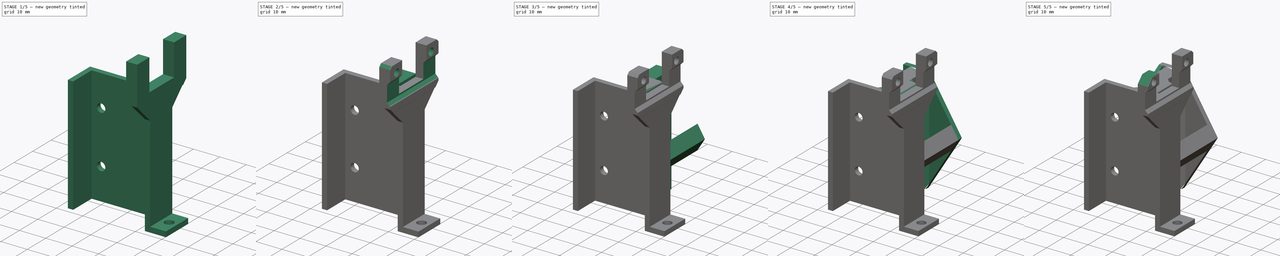
[diagram: build sequence overview — one tinted view per stage of 5, left to right]
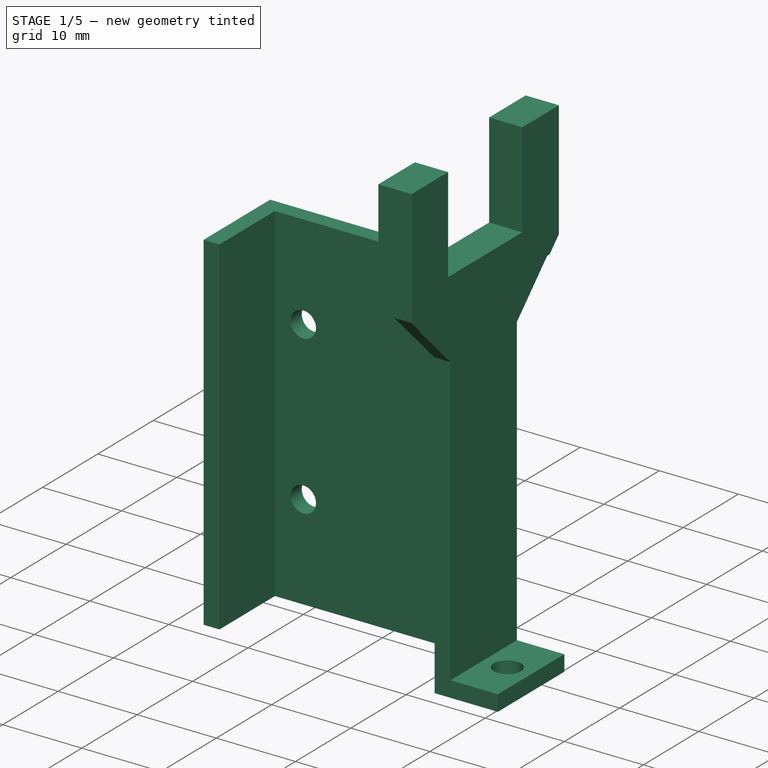
[diagram: stage 1 of 5 — iso view after this stage's code; geometry added in this stage tinted green]
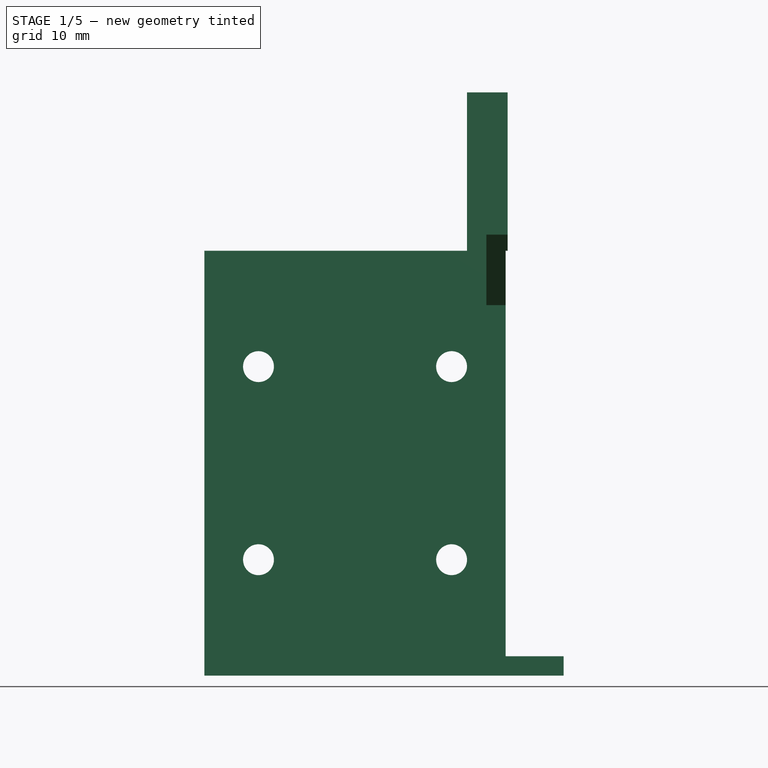
[diagram: stage 1 of 5 — front view after this stage's code; geometry added in this stage tinted green]
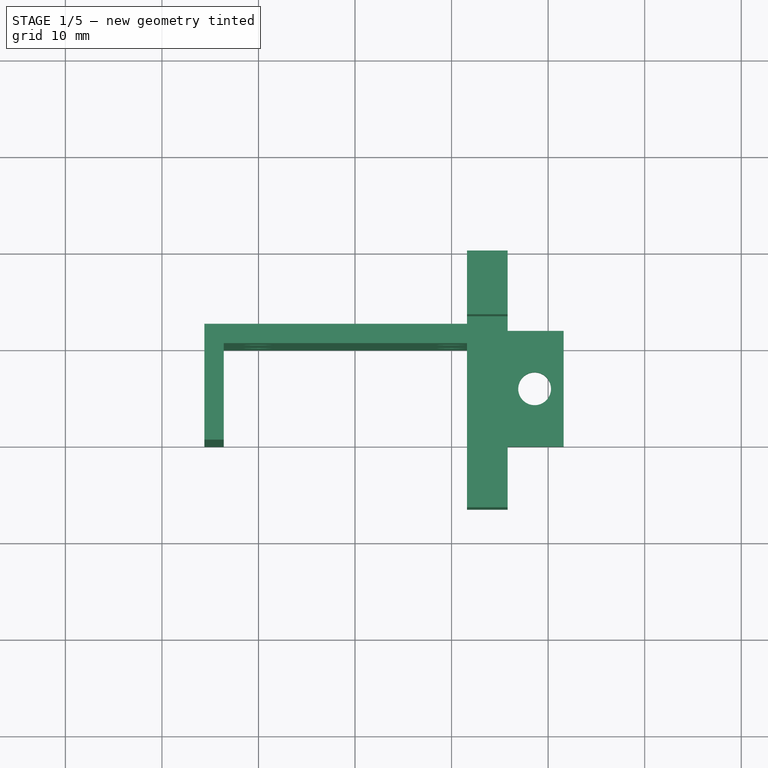
[diagram: stage 1 of 5 — top view after this stage's code; geometry added in this stage tinted green]
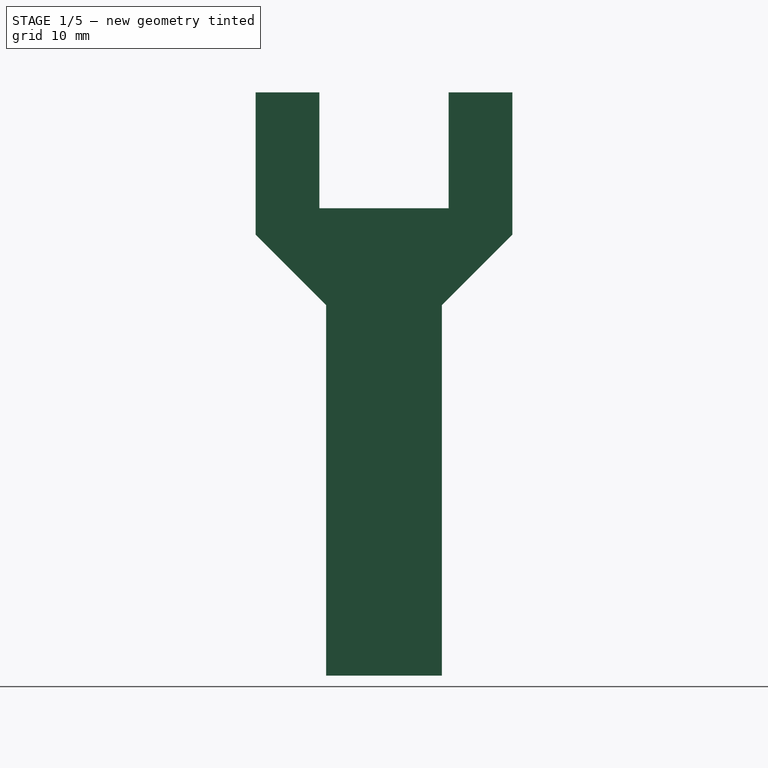
[diagram: stage 1 of 5 — right view after this stage's code; geometry added in this stage tinted green]
FCSTD DOCUMENT  (FreeCAD 0.18.1R)
Label: Rail Carrier
License: All rights reserved
LicenseURL: http://en.wikipedia.org/wiki/All_rights_reserved
objects: Sketcher::SketchObject×26, PartDesign::Pad×14, PartDesign::Pocket×12, PartDesign::Chamfer×4, PartDesign::LinearPattern×2, Spreadsheet::Sheet×1, PartDesign::Mirrored×1, PartDesign::Body×1
note: 86 computed .brp shape members not serialized (recipe doc carries the construction recipe); baked Part::Feature solids carry a one-line shape summary decoded from their .brp

FEATURE [Sketcher::SketchObject] Sketch  label="Sketch Pad Base"
  MapMode = 5
  Support = -> [XY_Plane001]
  sketch-geometry (9):
    g0: LineSegment StartX=-13.6 StartY=0 StartZ=0 EndX=13.6 EndY=0 EndZ=0
    g1: LineSegment StartX=13.6 StartY=0 StartZ=0 EndX=13.6 EndY=-10 EndZ=0
    g2: LineSegment StartX=13.6 StartY=-10 StartZ=0 EndX=15.6 EndY=-10 EndZ=0
    g3: LineSegment StartX=15.6 StartY=-10 StartZ=0 EndX=15.6 EndY=2 EndZ=0
    g4: LineSegment StartX=15.6 StartY=2 StartZ=0 EndX=-15.6 EndY=2 EndZ=0
    g5: LineSegment StartX=-15.6 StartY=2 StartZ=0 EndX=-15.6 EndY=-10 EndZ=0
    g6: LineSegment StartX=-15.6 StartY=-10 StartZ=0 EndX=-13.6 EndY=-10 EndZ=0
    g7: LineSegment StartX=-13.6 StartY=-10 StartZ=0 EndX=-13.6 EndY=0 EndZ=0
    g8: LineSegment [constr] StartX=-13.6 StartY=0 StartZ=0 EndX=-13.6 EndY=2 EndZ=0
  constraints (26):
    c: PointOnObject(g0,g-1)
    c: Coincident(g0,g1)
    c: Vertical(g1)
    c: Coincident(g1,g2)
    c: Horizontal(g2)
    c: Coincident(g2,g3)
    c: Vertical(g3)
    c: Coincident(g3,g4)
    c: Horizontal(g4)
    c: Coincident(g4,g5)
    c: Vertical(g5)
    c: Coincident(g5,g6)
    c: Horizontal(g6)
    c: Coincident(g6,g7)
    c: Coincident(g7,g0)
    c: Vertical(g7)
    c: Coincident(g8,g0)
    c: PointOnObject(g8,g4)
    c: Vertical(g8)
    c: Equal(g6,g8)
    c: Equal(g8,g2)
    c: Horizontal(g6,g1)
    c: Symmetric(g0,g0,g-2)
    c: Distance(g6) = 2
    c: Distance(g7) = 10
    c: Distance(g0) = 27.2
FEATURE [PartDesign::Pad] Pad  label="Pad Base"
  Length = 44
  Length2 = 100
  Profile = -> Sketch
  Type = 0
FEATURE [Spreadsheet::Sheet] Spreadsheet  label="Screws"
  cells = A1=Screw Type; B1=Length; D1=Diameter Loose; F1=Diameter Tight; A2=M3 Tapping; B2=m3tl; C2(m3tl)==12mm; D2=m3tD; E2(m3tD)==3.4mm; F2=m3td; G2(m3td)==2.8mm; A3=M3; B3=m3l; C3(m3l)==30mm; D3=m3D; E3(m3D)==3.2mm; F3=m3d; G3(m3d)==2.8mm
FEATURE [Sketcher::SketchObject] Sketch002  label="Sketch Bottom Holes"
  ExternalGeometry = -> [Pad]
  MapMode = 5
  Placement = pos=(0,2,0) rot=(0,0.707107,0.707107;3.14159rad)
  Support = -> [Pad]
  expr: Constraints[22] = Screws.m3D
  sketch-geometry (11):
    g0: LineSegment [constr] StartX=-10 StartY=32 StartZ=0 EndX=10 EndY=32 EndZ=0
    g1: LineSegment [constr] StartX=10 StartY=32 StartZ=0 EndX=10 EndY=12 EndZ=0
    g2: LineSegment [constr] StartX=10 StartY=12 StartZ=0 EndX=-10 EndY=12 EndZ=0
    g3: LineSegment [constr] StartX=-10 StartY=12 StartZ=0 EndX=-10 EndY=32 EndZ=0
    g4: Circle CenterX=-10 CenterY=32 CenterZ=0 NormalX=0 NormalY=0 NormalZ=1 AngleXU=0 Radius=1.6
    g5: Circle CenterX=-10 CenterY=12 CenterZ=0 NormalX=0 NormalY=0 NormalZ=1 AngleXU=0 Radius=1.6
    g6: Circle CenterX=10 CenterY=32 CenterZ=0 NormalX=0 NormalY=0 NormalZ=1 AngleXU=0 Radius=1.6
    g7: Circle CenterX=10 CenterY=12 CenterZ=0 NormalX=0 NormalY=0 NormalZ=1 AngleXU=0 Radius=1.6
    g8: LineSegment [constr] StartX=-15.6 StartY=44 StartZ=0 EndX=-10 EndY=32 EndZ=0
    g9: LineSegment [constr] StartX=-15.6 StartY=0 StartZ=0 EndX=-10 EndY=12 EndZ=0
    g10: LineSegment [constr] StartX=10 StartY=32 StartZ=0 EndX=15.6 EndY=44 EndZ=0
  constraints (26):
    c: Coincident(g0,g1)
    c: Coincident(g1,g2)
    c: Coincident(g2,g3)
    c: Coincident(g3,g0)
    c: Horizontal(g0)
    c: Horizontal(g2)
    c: Vertical(g1)
    c: Vertical(g3)
    c: Coincident(g4,g0)
    c: Coincident(g5,g2)
    c: Coincident(g6,g0)
    c: Coincident(g7,g1)
    c: Equal(g4,g5)
    c: Equal(g5,g6)
    c: Equal(g6,g7)
    c: Distance(g3) = 20
    c: Distance(g2) = 20
    c: Coincident(g8,g4)
    c: Coincident(g9,g5)
    c: Coincident(g10,g6)
    c: Equal(g9,g8)
    c: Equal(g8,g10)
    c: Diameter(g7) = 3.2
    c: Coincident(g8,g-3)
    c: Coincident(g10,g-3)
    c: Coincident(g-4,g9)
FEATURE [PartDesign::Pocket] Pocket  label="Bottom Holes"
  BaseFeature = -> Pad
  Length = 5
  Length2 = 100
  Profile = -> Sketch002
  Type = 1
FEATURE [Sketcher::SketchObject] Sketch008  label="Sketch Pad Mount"
  ExternalGeometry = -> [Pocket]
  MapMode = 5
  Placement = pos=(15.6,0,0) rot=(0.57735,0.57735,0.57735;2.0944rad)
  Support = -> [Pocket]
  sketch-geometry (4):
    g0: LineSegment StartX=-10 StartY=0 StartZ=0 EndX=2 EndY=0 EndZ=0
    g1: LineSegment StartX=2 StartY=0 StartZ=0 EndX=2 EndY=2 EndZ=0
    g2: LineSegment StartX=2 StartY=2 StartZ=0 EndX=-10 EndY=2 EndZ=0
    g3: LineSegment StartX=-10 StartY=2 StartZ=0 EndX=-10 EndY=0 EndZ=0
  constraints (10):
    c: Coincident(g0,g1)
    c: Coincident(g1,g2)
    c: Coincident(g2,g3)
    c: Coincident(g3,g0)
    c: Horizontal(g2)
    c: Vertical(g1)
    c: Vertical(g3)
    c: Distance(g3) = 2
    c: Coincident(g0,g-3)
    c: Coincident(g0,g-3)
FEATURE [PartDesign::Pad] Pad007  label="Pad Mount"
  BaseFeature = -> Pocket
  Length = 6
  Length2 = 100
  Profile = -> Sketch008
  Type = 0
FEATURE [Sketcher::SketchObject] Sketch009  label="Sketch Mount Hole"
  ExternalGeometry = -> [Pad007]
  MapMode = 5
  Placement = pos=(0,0,0) rot=(1,0,0;3.14159rad)
  Support = -> [Pad007]
  expr: Constraints[0] = Screws.m3tD
  sketch-geometry (1):
    g0: Circle CenterX=18.6 CenterY=4 CenterZ=0 NormalX=0 NormalY=0 NormalZ=1 AngleXU=0 Radius=1.7
  constraints (3):
    c: Diameter(g0) = 3.4
    c: DistanceY(g0,g-3) = 6
    c: DistanceX(g-3,g0) = 3
FEATURE [PartDesign::Pocket] Pocket001  label="Mount Hole"
  BaseFeature = -> Pad007
  Length = 5
  Length2 = 100
  Profile = -> Sketch009
  Type = 1
FEATURE [Sketcher::SketchObject] Sketch011  label="Sketch Pad Endstop Mount"
  ExternalGeometry = -> [Pocket001]
  MapMode = 5
  Placement = pos=(15.6,0,0) rot=(0.57735,0.57735,0.57735;2.0944rad)
  Support = -> [Pocket001]
  sketch-geometry (16):
    g0: LineSegment StartX=-17.3 StartY=45.6662 StartZ=0 EndX=-17.3 EndY=60.4 EndZ=0
    g1: LineSegment StartX=-17.3 StartY=60.4 StartZ=0 EndX=-10.7 EndY=60.4 EndZ=0
    g2: LineSegment StartX=-10.7 StartY=60.4 StartZ=0 EndX=-10.7 EndY=48.4 EndZ=0
    g3: LineSegment StartX=-10.7 StartY=48.4 StartZ=0 EndX=2.7 EndY=48.4 EndZ=0
    g4: LineSegment StartX=2.7 StartY=48.4 StartZ=0 EndX=2.7 EndY=60.4 EndZ=0
    g5: LineSegment StartX=2.7 StartY=60.4 StartZ=0 EndX=9.3 EndY=60.4 EndZ=0
    g6: LineSegment StartX=9.3 StartY=60.4 StartZ=0 EndX=9.3 EndY=45.6662 EndZ=0
    g7: LineSegment [constr] StartX=-10.7 StartY=48.4 StartZ=0 EndX=-17.3 EndY=48.4 EndZ=0
    g8: LineSegment StartX=-17.3 StartY=45.6662 StartZ=0 EndX=-10 EndY=38.3662 EndZ=0
    g9: LineSegment StartX=-10 StartY=38.3662 StartZ=0 EndX=-10 EndY=44 EndZ=0
    g10: LineSegment StartX=-10 StartY=44 StartZ=0 EndX=2 EndY=44 EndZ=0
    g11: LineSegment StartX=2 StartY=44 StartZ=0 EndX=2 EndY=38.3662 EndZ=0
    g12: LineSegment StartX=2 StartY=38.3662 StartZ=0 EndX=9.3 EndY=45.6662 EndZ=0
    g13: LineSegment [constr] StartX=-10 StartY=44 StartZ=0 EndX=2.7 EndY=48.4 EndZ=0
    g14: LineSegment [constr] StartX=-10.7 StartY=48.4 StartZ=0 EndX=2 EndY=44 EndZ=0
    g15: LineSegment [constr] StartX=-10.7 StartY=48.4 StartZ=0 EndX=-15.3669 EndY=43.7331 EndZ=0
  constraints (44):
    c: Vertical(g0)
    c: Coincident(g0,g1)
    c: Horizontal(g1)
    c: Coincident(g1,g2)
    c: Vertical(g2)
    c: Coincident(g2,g3)
    c: Horizontal(g3)
    c: Coincident(g3,g4)
    c: Vertical(g4)
    c: Coincident(g4,g5)
    c: Horizontal(g5)
    c: Coincident(g5,g6)
    c: Vertical(g6)
    c: Horizontal(g0,g6)
    c: Horizontal(g4,g1)
    c: Equal(g1,g5)
    c: Distance(g3) = 13.4
    c: Distance(g1) = 6.6
    c: Distance(g2) = 12
    c: Coincident(g7,g2)
    c: PointOnObject(g7,g0)
    c: Horizontal(g7)
    c: Coincident(g0,g8)
    c: PointOnObject(g8,g-3)
    c: Coincident(g8,g9)
    c: Coincident(g9,g-3)
    c: Coincident(g9,g10)
    c: Coincident(g10,g-4)
    c: Coincident(g10,g11)
    c: PointOnObject(g11,g-4)
    c: Coincident(g11,g12)
    c: Coincident(g12,g6)
    c: Horizontal(g8,g11)
    c: Coincident(g13,g9)
    c: Coincident(g13,g3)
    c: Coincident(g14,g2)
    c: Coincident(g14,g10)
    c: Equal(g13,g14)
    c: Coincident(g15,g2)
    c: PointOnObject(g15,g8)
    c: Perpendicular(g8,g15)
    c: Equal(g7,g15)
    c: DistanceY(g9,g0) = 16.4
    c: Angle(g9,g8) = 0.785398
FEATURE [PartDesign::Pad] Pad008  label="Pad Endstop Mount"
  BaseFeature = -> Pocket001
  Length = 2
  Length2 = 100
  Profile = -> Sketch011
  Reversed = true
  Type = 0
FEATURE [Sketcher::SketchObject] Sketch016  label="Sketch Pad In Endstop Mount"
  ExternalGeometry = -> [Pad008]
  MapMode = 5
  Placement = pos=(13.6,0,0) rot=(0.57735,-0.57735,-0.57735;2.0944rad)
  Support = -> [Pad008]
  sketch-geometry (12):
    g0: LineSegment StartX=-2.7 StartY=60.4 StartZ=0 EndX=-9.3 EndY=60.4 EndZ=0
    g1: LineSegment StartX=-9.3 StartY=60.4 StartZ=0 EndX=-9.3 EndY=45.6662 EndZ=0
    g2: LineSegment StartX=-9.3 StartY=45.6662 StartZ=0 EndX=-2 EndY=38.3662 EndZ=0
    g3: LineSegment StartX=-2 StartY=38.3662 StartZ=0 EndX=-2 EndY=44 EndZ=0
    g4: LineSegment StartX=-2 StartY=44 StartZ=0 EndX=0 EndY=44 EndZ=0
    g5: LineSegment StartX=0 StartY=44 StartZ=0 EndX=0 EndY=45.6662 EndZ=0
    g6: LineSegment StartX=0 StartY=45.6662 StartZ=0 EndX=17.3 EndY=45.6662 EndZ=0
    g7: LineSegment StartX=17.3 StartY=45.6662 StartZ=0 EndX=17.3 EndY=60.4 EndZ=0
    g8: LineSegment StartX=17.3 StartY=60.4 StartZ=0 EndX=10.7 EndY=60.4 EndZ=0
    g9: LineSegment StartX=10.7 StartY=60.4 StartZ=0 EndX=10.7 EndY=48.4 EndZ=0
    g10: LineSegment StartX=10.7 StartY=48.4 StartZ=0 EndX=-2.7 EndY=48.4 EndZ=0
    g11: LineSegment StartX=-2.7 StartY=48.4 StartZ=0 EndX=-2.7 EndY=60.4 EndZ=0
  constraints (25):
    c: Coincident(g-3,g0)
    c: Coincident(g0,g-3)
    c: Coincident(g0,g1)
    c: Coincident(g1,g-7)
    c: Coincident(g1,g2)
    c: Coincident(g2,g-7)
    c: Coincident(g2,g3)
    c: Coincident(g3,g-8)
    c: Coincident(g3,g4)
    c: Coincident(g4,g-8)
    c: Coincident(g4,g5)
    c: PointOnObject(g5,g-2)
    c: Coincident(g5,g6)
    c: Coincident(g6,g-6)
    c: Horizontal(g6)
    c: Coincident(g6,g7)
    c: Coincident(g7,g-5)
    c: Coincident(g7,g8)
    c: Coincident(g8,g-5)
    c: Coincident(g8,g9)
    c: Coincident(g9,g-4)
    c: Coincident(g9,g10)
    c: Coincident(g10,g-4)
    c: Coincident(g10,g11)
    c: Coincident(g11,g0)
FEATURE [PartDesign::Pad] Pad011  label="Pad In Endstop Mount"
  BaseFeature = -> Pad008
  Length = 2
  Length2 = 100
  Profile = -> Sketch016
  Type = 0
FEATURE [Sketcher::SketchObject] Sketch013  label="Sketch Pad Out Endstop Mount"
  ExternalGeometry = -> [Pad011]
  MapMode = 5
  Placement = pos=(15.6,0,0) rot=(0.57735,0.57735,0.57735;2.0944rad)
  Support = -> [Pad011]
  sketch-geometry (10):
    g0: LineSegment StartX=9.3 StartY=45.6662 StartZ=0 EndX=9.3 EndY=60.4 EndZ=0
    g1: LineSegment StartX=9.3 StartY=60.4 StartZ=0 EndX=2.7 EndY=60.4 EndZ=0
    g2: LineSegment StartX=2.7 StartY=60.4 StartZ=0 EndX=2.7 EndY=48.4 EndZ=0
    g3: LineSegment StartX=2.7 StartY=48.4 StartZ=0 EndX=-10.7 EndY=48.4 EndZ=0
    g4: LineSegment StartX=-10.7 StartY=48.4 StartZ=0 EndX=-10.7 EndY=60.4 EndZ=0
    g5: LineSegment StartX=-10.7 StartY=60.4 StartZ=0 EndX=-17.3 EndY=60.4 EndZ=0
    g6: LineSegment StartX=-17.3 StartY=60.4 StartZ=0 EndX=-17.3 EndY=45.6662 EndZ=0
    g7: LineSegment StartX=-15.6338 StartY=44 StartZ=0 EndX=7.63381 EndY=44 EndZ=0
    g8: LineSegment StartX=-17.3 StartY=45.6662 StartZ=0 EndX=-15.6338 EndY=44 EndZ=0
    g9: LineSegment StartX=9.3 StartY=45.6662 StartZ=0 EndX=7.63381 EndY=44 EndZ=0
  constraints (22):
    c: Coincident(g0,g1)
    c: Coincident(g1,g2)
    c: Coincident(g2,g3)
    c: Coincident(g3,g4)
    c: Coincident(g4,g5)
    c: Coincident(g5,g6)
    c: Horizontal(g7)
    c: Coincident(g8,g6)
    c: Coincident(g8,g7)
    c: Coincident(g9,g0)
    c: Coincident(g9,g7)
    c: Coincident(g5,g-3)
    c: Coincident(g4,g-3)
    c: Coincident(g3,g-8)
    c: Coincident(g2,g-8)
    c: Coincident(g1,g-4)
    c: Coincident(g0,g-4)
    c: Coincident(g6,g-6)
    c: PointOnObject(g7,g-6)
    c: PointOnObject(g-5,g7)
    c: PointOnObject(g7,g-7)
    c: Coincident(g0,g-7)
FEATURE [PartDesign::Pad] Pad010  label="Pad Out Endstop Mount"
  BaseFeature = -> Pad011
  Length = 0.2
  Length2 = 100
  Profile = -> Sketch013
  Type = 0
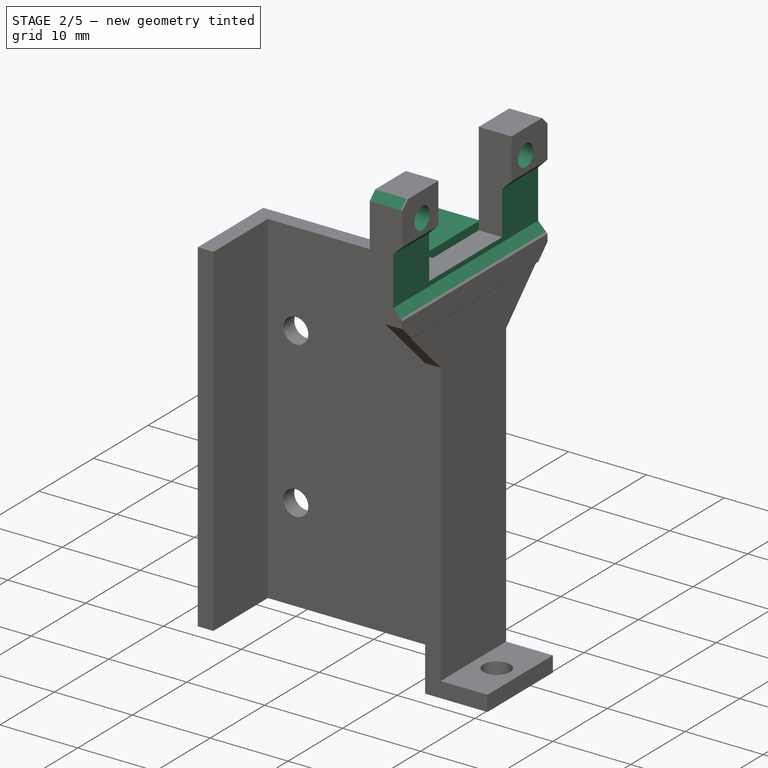
[diagram: stage 2 of 5 — iso view after this stage's code; geometry added in this stage tinted green]
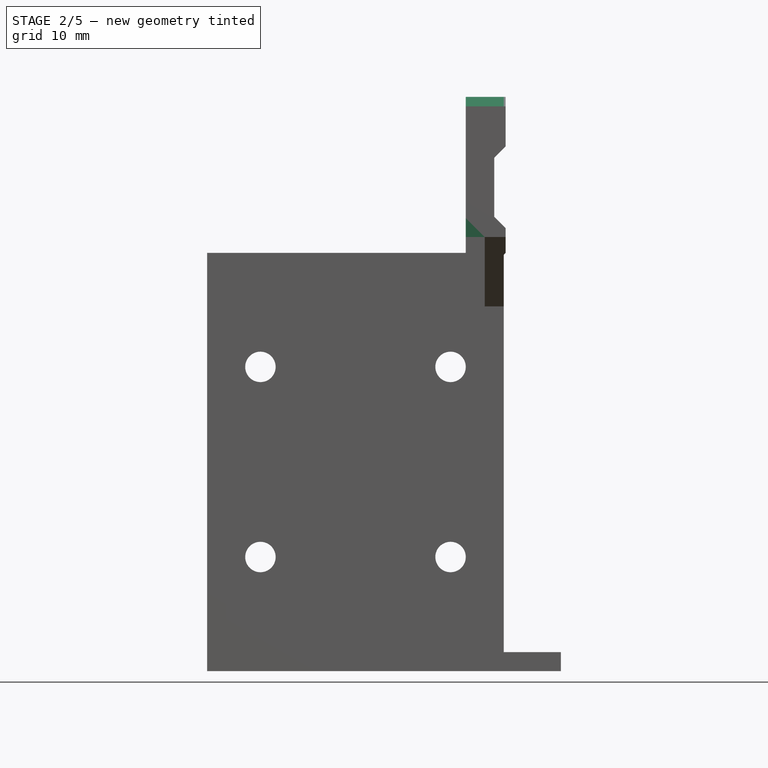
[diagram: stage 2 of 5 — front view after this stage's code; geometry added in this stage tinted green]
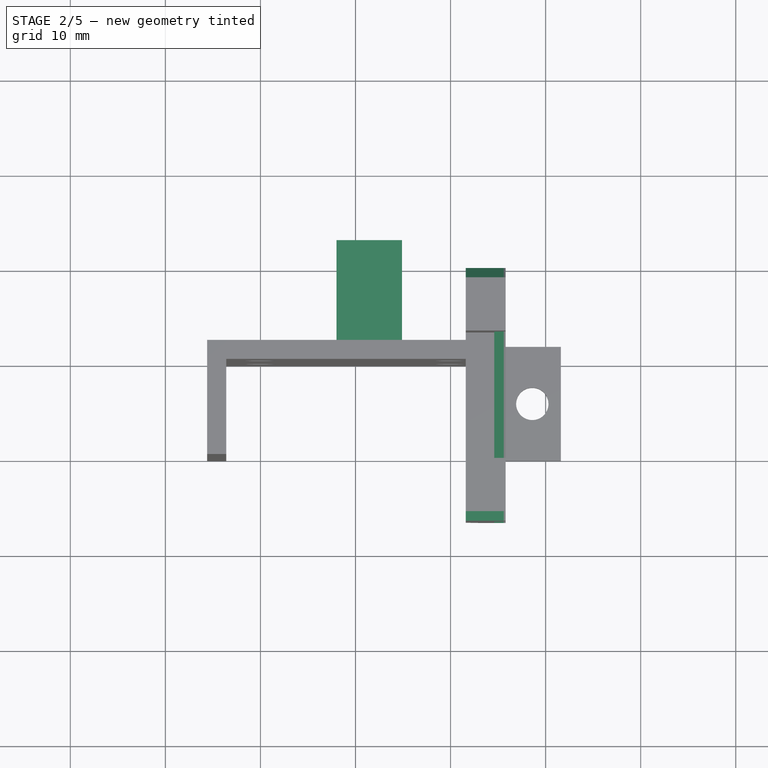
[diagram: stage 2 of 5 — top view after this stage's code; geometry added in this stage tinted green]
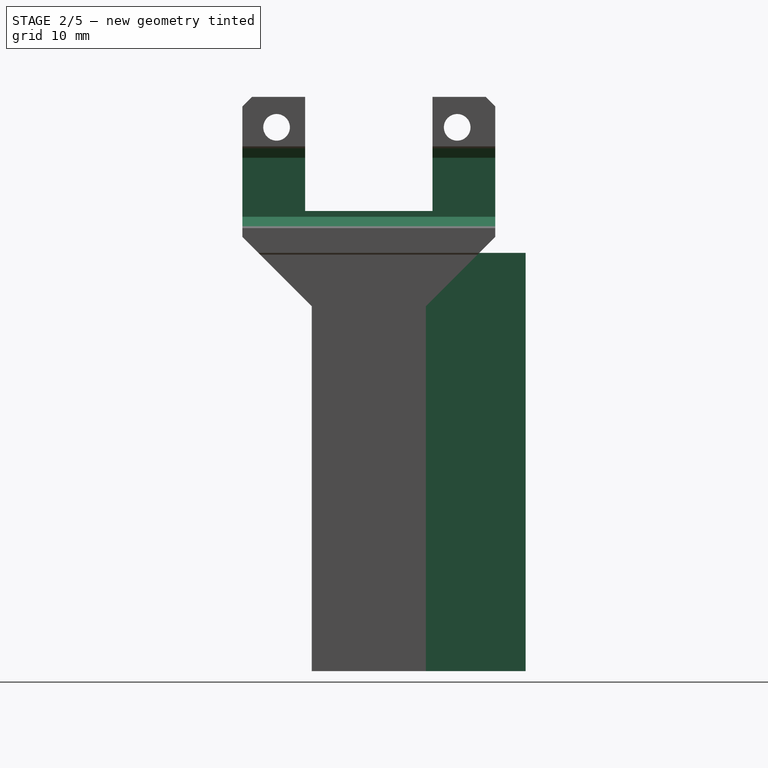
[diagram: stage 2 of 5 — right view after this stage's code; geometry added in this stage tinted green]
FEATURE [Sketcher::SketchObject] Sketch014  label="Sketch Cut Endstop Indent"
  ExternalGeometry = -> [Pad010]
  MapMode = 5
  Placement = pos=(0,9.3,0) rot=(0,0.707107,0.707107;3.14159rad)
  Support = -> [Pad010]
  sketch-geometry (4):
    g0: LineSegment StartX=-15.8 StartY=55.2 StartZ=0 EndX=-14.6 EndY=54 EndZ=0
    g1: LineSegment StartX=-14.6 StartY=54 StartZ=0 EndX=-14.6 EndY=47.8 EndZ=0
    g2: LineSegment StartX=-14.6 StartY=47.8 StartZ=0 EndX=-15.8 EndY=46.6 EndZ=0
    g3: LineSegment StartX=-15.8 StartY=46.6 StartZ=0 EndX=-15.8 EndY=55.2 EndZ=0
  constraints (12):
    c: Coincident(g0,g1)
    c: Vertical(g1)
    c: Coincident(g1,g2)
    c: Coincident(g2,g3)
    c: Coincident(g3,g0)
    c: Vertical(g3)
    c: Angle(g2,g3) = 0.785398
    c: Equal(g2,g0)
    c: Distance(g0,g3) = 1.2
    c: PointOnObject(g0,g-3)
    c: DistanceY(g0,g-3) = 6.4
    c: DistanceY(g1,g-3) = 12.6
FEATURE [PartDesign::Pocket] Pocket003  label="Cut Endstop Indent"
  BaseFeature = -> Pad010
  Length = 5
  Length2 = 100
  Profile = -> Sketch014
  Type = 1
FEATURE [Sketcher::SketchObject] Sketch017  label="Sketch Endstop Mount Holes"
  ExternalGeometry = -> [Pocket003]
  MapMode = 5
  Placement = pos=(15.8,0,0) rot=(0.57735,0.57735,0.57735;2.0944rad)
  Support = -> [Pocket003]
  expr: Constraints[3] = Screws.m3d
  sketch-geometry (2):
    g0: Circle CenterX=-13.7 CenterY=57.2 CenterZ=0 NormalX=0 NormalY=0 NormalZ=1 AngleXU=0 Radius=1.4
    g1: Circle CenterX=5.3 CenterY=57.2 CenterZ=0 NormalX=0 NormalY=0 NormalZ=1 AngleXU=0 Radius=1.4
  constraints (6):
    c: Horizontal(g0,g1)
    c: Equal(g0,g1)
    c: Distance(g0,g1) = 19
    c: Diameter(g0) = 2.8
    c: DistanceY(g0,g-3) = 3.2
    c: DistanceX(g0,g-3) = 3
FEATURE [PartDesign::Pocket] Pocket004  label="Endstop Mount Holes"
  BaseFeature = -> Pocket003
  Length = 5
  Length2 = 100
  Profile = -> Sketch017
  Type = 1
FEATURE [PartDesign::Chamfer] Chamfer  label="Chamfer In Endstop Mount"
  Base = -> Pocket004 [Edge59]
  BaseFeature = -> Pocket004
  Size = 1.99
FEATURE [PartDesign::Chamfer] Chamfer001  label="Chamfer Out Endstop Mount"
  Base = -> Chamfer [Edge115]
  BaseFeature = -> Chamfer
  Size = 0.19
FEATURE [PartDesign::Chamfer] Chamfer002  label="Chamfer Endstop Mount Edges"
  Base = -> Chamfer001 [Edge133,Edge26]
  BaseFeature = -> Chamfer001
  Size = 1
FEATURE [Sketcher::SketchObject] Sketch018  label="Sketch Lower Pad"
  ExternalGeometry = -> [Chamfer002]
  MapMode = 5
  Placement = pos=(0,2,0) rot=(0,0.707107,0.707107;3.14159rad)
  Support = -> [Chamfer002]
  sketch-geometry (4):
    g0: LineSegment StartX=-4.9 StartY=0 StartZ=0 EndX=2 EndY=0 EndZ=0
    g1: LineSegment StartX=2 StartY=0 StartZ=0 EndX=2 EndY=44 EndZ=0
    g2: LineSegment StartX=2 StartY=44 StartZ=0 EndX=-4.9 EndY=44 EndZ=0
    g3: LineSegment StartX=-4.9 StartY=44 StartZ=0 EndX=-4.9 EndY=0 EndZ=0
  constraints (12):
    c: PointOnObject(g0,g-1)
    c: PointOnObject(g0,g-1)
    c: Coincident(g0,g1)
    c: PointOnObject(g1,g-3)
    c: Vertical(g1)
    c: Coincident(g1,g2)
    c: PointOnObject(g2,g-3)
    c: Coincident(g2,g3)
    c: Coincident(g3,g0)
    c: Vertical(g3)
    c: Distance(g0,g-2) = 2
    c: Distance(g0,g-1) = 4.9
FEATURE [PartDesign::Pad] Pad012  label="Lower Pad"
  BaseFeature = -> Chamfer002
  Length = 10.5
  Length2 = 100
  Profile = -> Sketch018
  Type = 0
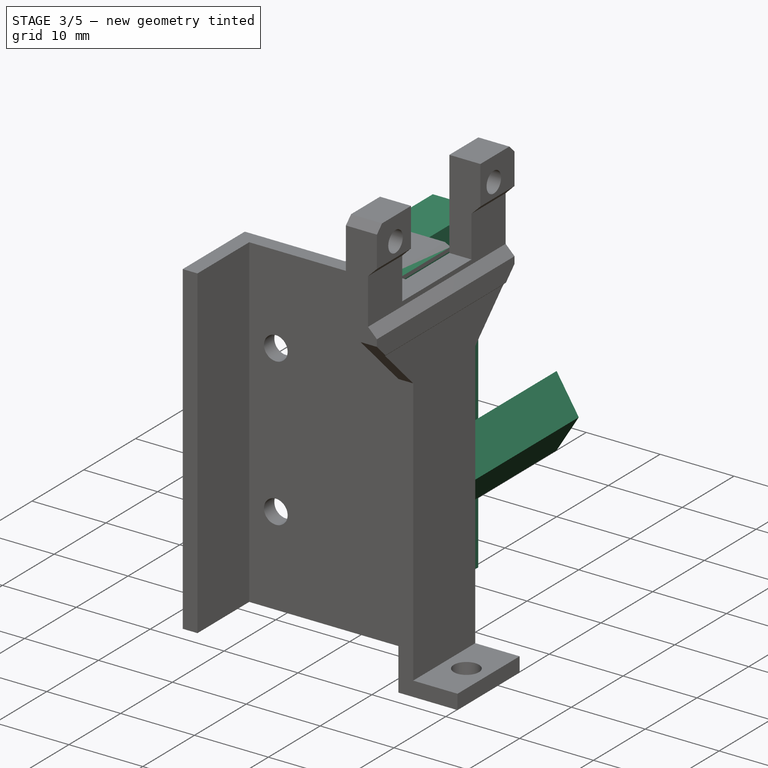
[diagram: stage 3 of 5 — iso view after this stage's code; geometry added in this stage tinted green]
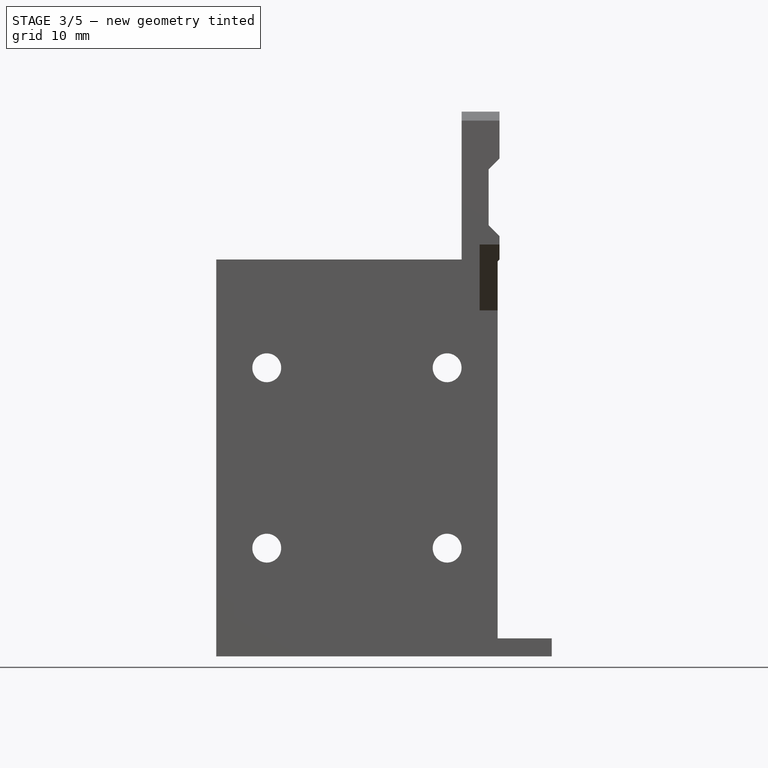
[diagram: stage 3 of 5 — front view after this stage's code; geometry added in this stage tinted green]
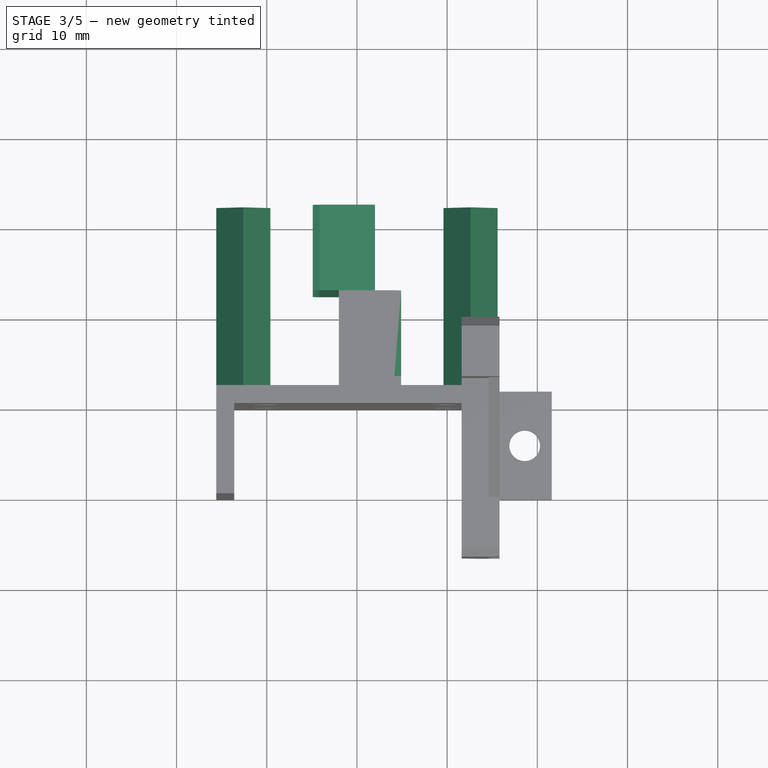
[diagram: stage 3 of 5 — top view after this stage's code; geometry added in this stage tinted green]
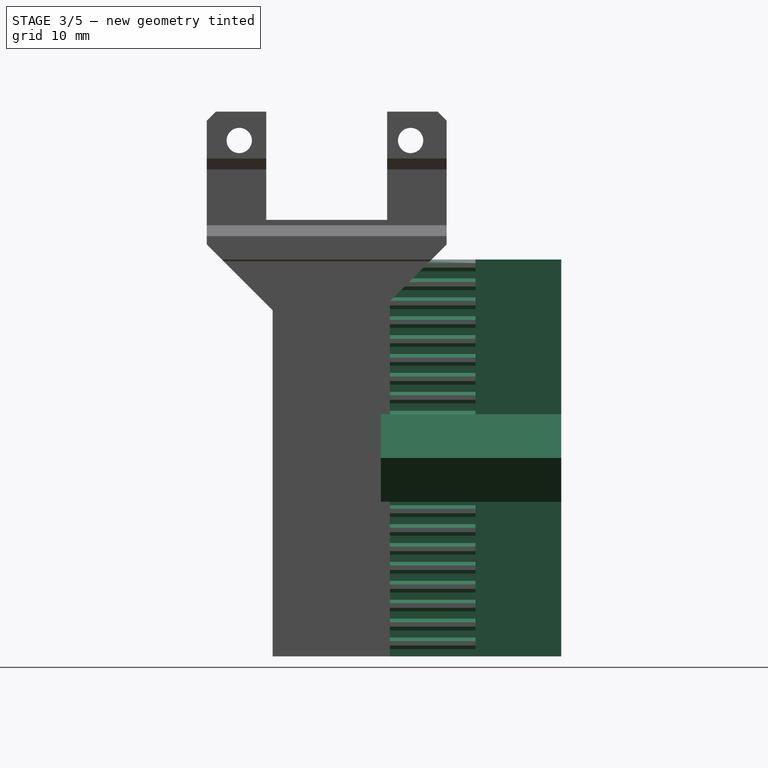
[diagram: stage 3 of 5 — right view after this stage's code; geometry added in this stage tinted green]
FEATURE [Sketcher::SketchObject] Sketch019  label="Sketch Lower Tooth Cut"
  ExternalGeometry = -> [Pad012]
  MapMode = 5
  Placement = pos=(0,12.5,-2.8e-15) rot=(0,0.707107,0.707107;3.14159rad)
  Support = -> [Pad012]
  sketch-geometry (8):
    g0: LineSegment StartX=-4.9 StartY=45.2 StartZ=0 EndX=-4.15 EndY=44.8 EndZ=0
    g1: LineSegment StartX=-4.15 StartY=44.8 StartZ=0 EndX=-4.15 EndY=44 EndZ=0
    g2: LineSegment StartX=-4.15 StartY=44 StartZ=0 EndX=-4.9 EndY=43.6 EndZ=0
    g3: LineSegment StartX=-4.9 StartY=43.6 StartZ=0 EndX=-4.9 EndY=45.2 EndZ=0
    g4: LineSegment [constr] StartX=-4.9 StartY=43.6 StartZ=0 EndX=-4.9 EndY=43.2 EndZ=0
    g5: LineSegment [constr] StartX=-4.9 StartY=43.2 StartZ=0 EndX=-4.15 EndY=42.8 EndZ=0
    g6: LineSegment [constr] StartX=-4.15 StartY=42.8 StartZ=0 EndX=-4.15 EndY=42 EndZ=0
    g7: LineSegment [constr] StartX=-4.15 StartY=42 StartZ=0 EndX=-4.9 EndY=41.6 EndZ=0
  constraints (25):
    c: Coincident(g0,g1)
    c: Vertical(g1)
    c: Coincident(g1,g2)
    c: PointOnObject(g2,g-3)
    c: Coincident(g2,g3)
    c: Coincident(g3,g0)
    c: Vertical(g3)
    c: Equal(g0,g2)
    c: Horizontal(g-3,g1)
    c: Distance(g1,g-3) = 0.75
    c: Distance(g1) = 0.8
    c: Coincident(g2,g4)
    c: PointOnObject(g4,g-3)
    c: Coincident(g4,g5)
    c: Coincident(g5,g6)
    c: Vertical(g6)
    c: Coincident(g6,g7)
    c: PointOnObject(g7,g-3)
    c: Equal(g7,g5)
    c: Equal(g5,g2)
    c: Equal(g6,g1)
    c: Vertical(g1,g5)
    c: Distance(g1,g6) = 2
    c: Angle(g2,g3) = 1.08084
    c: Distance(g4) = 0.4
FEATURE [PartDesign::Pocket] Pocket005  label="Lower Tooth Cut"
  BaseFeature = -> Pad012
  Length = 9.5
  Length2 = 100
  Profile = -> Sketch019
  Type = 0
FEATURE [PartDesign::LinearPattern] LinearPattern  label="Lower Teeth LinearPattern"
  BaseFeature = -> Pocket005
  Direction = -> Z_Axis001
  Length = 44
  Occurrences = 22
  Originals = -> [Pocket005]
  Reversed = true
FEATURE [Sketcher::SketchObject] Sketch020  label="Sketch Upper Pad"
  ExternalGeometry = -> [LinearPattern]
  MapMode = 5
  Placement = pos=(0,12.5,-2.8e-15) rot=(0,0.707107,0.707107;3.14159rad)
  Support = -> [LinearPattern]
  sketch-geometry (4):
    g0: LineSegment StartX=-2 StartY=0 StartZ=0 EndX=4.9 EndY=0 EndZ=0
    g1: LineSegment StartX=4.9 StartY=0 StartZ=0 EndX=4.9 EndY=44 EndZ=0
    g2: LineSegment StartX=4.9 StartY=44 StartZ=0 EndX=-2 EndY=44 EndZ=0
    g3: LineSegment StartX=-2 StartY=44 StartZ=0 EndX=-2 EndY=0 EndZ=0
  constraints (12):
    c: Coincident(g0,g1)
    c: Coincident(g1,g2)
    c: Coincident(g2,g3)
    c: Coincident(g3,g0)
    c: Horizontal(g0)
    c: Horizontal(g2)
    c: Vertical(g1)
    c: Vertical(g3)
    c: PointOnObject(g0,g-1)
    c: PointOnObject(g2,g-3)
    c: Distance(g0,g-2) = 2
    c: Distance(g-1,g1) = 4.9
FEATURE [PartDesign::Pad] Pad013  label="Upper Pad"
  BaseFeature = -> LinearPattern
  Length = 9.5
  Length2 = 100
  Profile = -> Sketch020
  Type = 0
FEATURE [Sketcher::SketchObject] Sketch021  label="Sketch Upper Tooth Cut"
  ExternalGeometry = -> [Pad013]
  MapMode = 5
  Placement = pos=(0,22,-4.4e-15) rot=(0,0.707107,0.707107;3.14159rad)
  Support = -> [Pad013]
  sketch-geometry (4):
    g0: LineSegment StartX=4.9 StartY=-1.2 StartZ=0 EndX=4.15 EndY=-0.8 EndZ=0
    g1: LineSegment StartX=4.15 StartY=-0.8 StartZ=0 EndX=4.15 EndY=0 EndZ=0
    g2: LineSegment StartX=4.15 StartY=0 StartZ=0 EndX=4.9 EndY=0.4 EndZ=0
    g3: LineSegment StartX=4.9 StartY=0.4 StartZ=0 EndX=4.9 EndY=-1.2 EndZ=0
  constraints (12):
    c: Coincident(g0,g1)
    c: PointOnObject(g1,g-1)
    c: Vertical(g1)
    c: Coincident(g1,g2)
    c: PointOnObject(g2,g-3)
    c: Coincident(g2,g3)
    c: Coincident(g3,g0)
    c: Vertical(g3)
    c: Equal(g-4,g1)
    c: Equal(g-5,g2)
    c: Equal(g2,g0)
    c: Equal(g-6,g3)
FEATURE [PartDesign::Pocket] Pocket006  label="Upper Tooth Cut"
  BaseFeature = -> Pad013
  Length = 9.5
  Length2 = 100
  Profile = -> Sketch021
  Type = 0
FEATURE [PartDesign::LinearPattern] LinearPattern001  label="Upper Teeth LinearPattern"
  BaseFeature = -> Pocket006
  Direction = -> Z_Axis001
  Length = 44
  Occurrences = 22
  Originals = -> [Pocket006]
FEATURE [Sketcher::SketchObject] Sketch022  label="Sketch Column"
  ExternalGeometry = -> [LinearPattern001]
  MapMode = 5
  Placement = pos=(0,2,0) rot=(0,0.707107,0.707107;3.14159rad)
  Support = -> [LinearPattern001]
  sketch-geometry (6):
    g0: LineSegment StartX=-12.6 StartY=17.1471 StartZ=0 EndX=-15.6 EndY=22 EndZ=0
    g1: LineSegment StartX=-15.6 StartY=22 StartZ=0 EndX=-12.6 EndY=26.8529 EndZ=0
    g2: LineSegment StartX=-12.6 StartY=26.8529 StartZ=0 EndX=-9.6 EndY=22 EndZ=0
    g3: LineSegment StartX=-9.6 StartY=22 StartZ=0 EndX=-12.6 EndY=17.1471 EndZ=0
    g4: LineSegment [constr] StartX=-2 StartY=0 StartZ=0 EndX=-12.6 EndY=17.1471 EndZ=0
    g5: LineSegment [constr] StartX=-2 StartY=44 StartZ=0 EndX=-12.6 EndY=26.8529 EndZ=0
  constraints (17):
    c: PointOnObject(g0,g-3)
    c: PointOnObject(g1,g-3)
    c: Coincident(g1,g2)
    c: Coincident(g3,g0)
    c: Horizontal(g1,g2)
    c: Horizontal(g0,g3)
    c: Equal(g1,g2)
    c: Equal(g2,g3)
    c: Equal(g3,g0)
    c: Distance(g0,g3) = 6
    c: Coincident(g4,g0)
    c: Coincident(g5,g1)
    c: Parallel(g4,g0)
    c: Parallel(g1,g5)
    c: Coincident(g4,g-4)
    c: Coincident(g-4,g5)
    c: Coincident(g2,g3)
FEATURE [PartDesign::Pad] Pad014  label="Column"
  BaseFeature = -> LinearPattern001
  Length = 20
  Length2 = 100
  Profile = -> Sketch022
  Type = 0
FEATURE [PartDesign::Mirrored] Mirrored  label="Mirrored Column"
  BaseFeature = -> Pad014
  MirrorPlane = -> YZ_Plane001
  Originals = -> [Pad014]
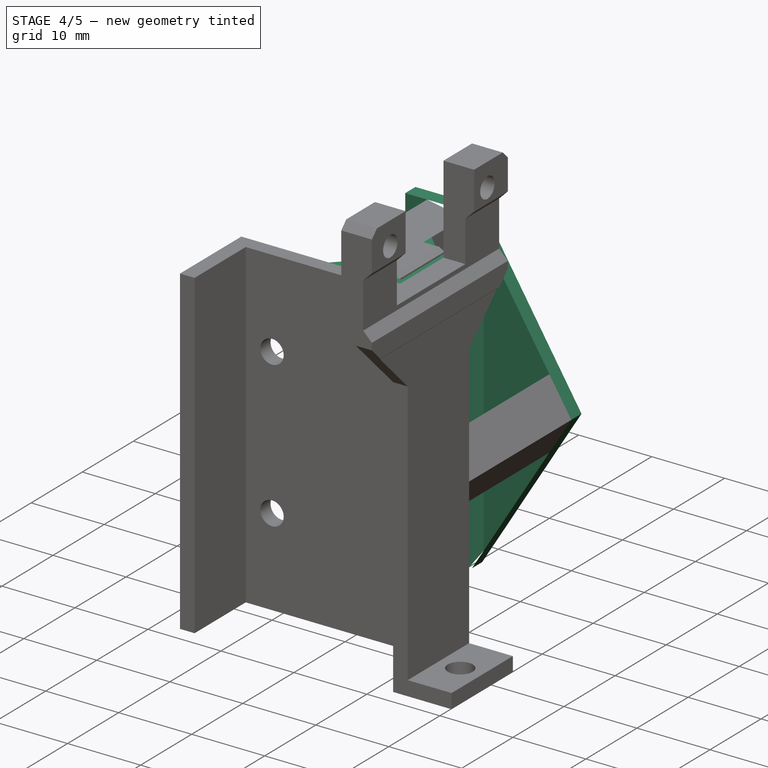
[diagram: stage 4 of 5 — iso view after this stage's code; geometry added in this stage tinted green]
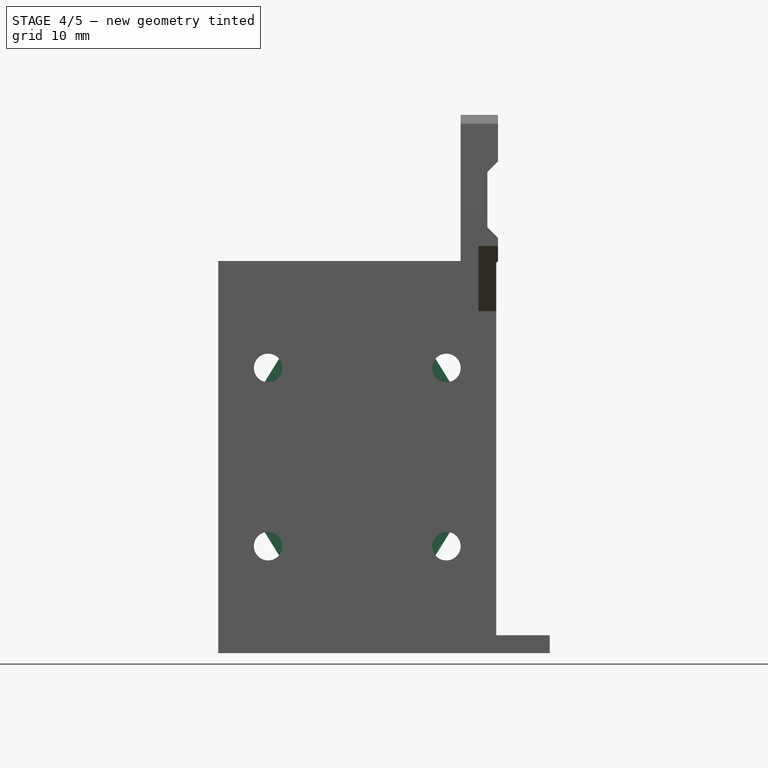
[diagram: stage 4 of 5 — front view after this stage's code; geometry added in this stage tinted green]
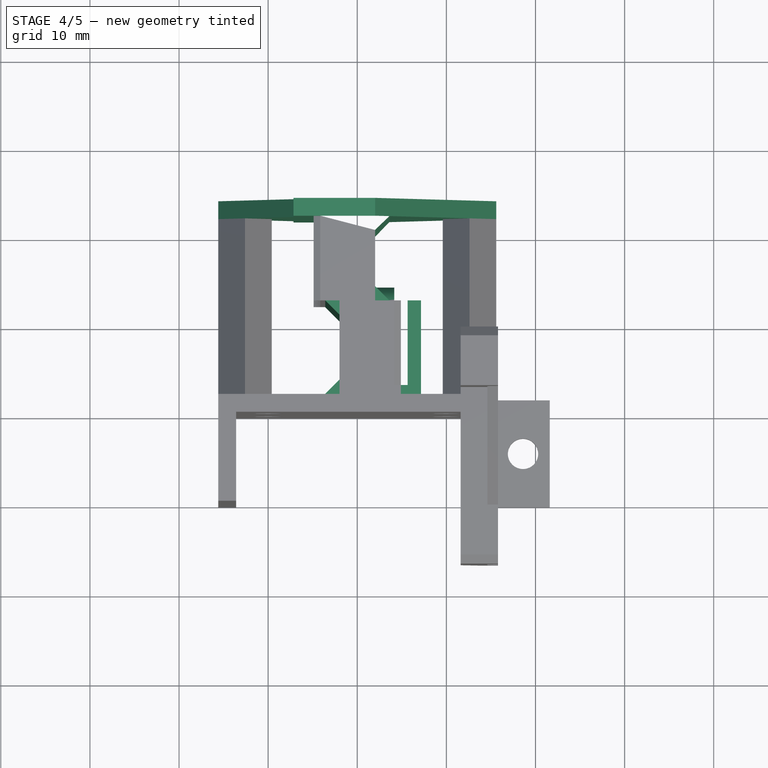
[diagram: stage 4 of 5 — top view after this stage's code; geometry added in this stage tinted green]
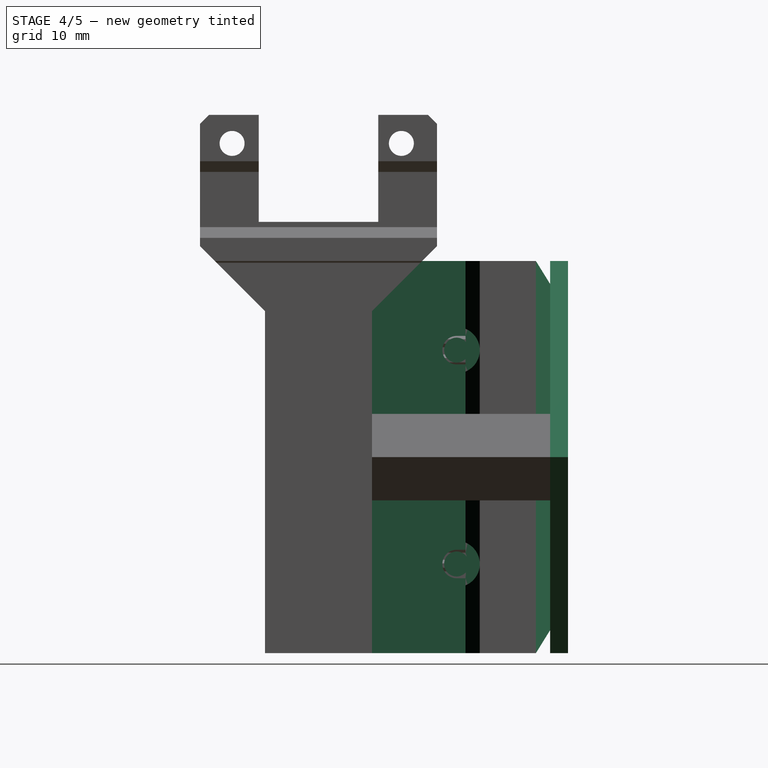
[diagram: stage 4 of 5 — right view after this stage's code; geometry added in this stage tinted green]
FEATURE [Sketcher::SketchObject] Sketch023  label="Sketch Top"
  ExternalGeometry = -> [Mirrored]
  MapMode = 5
  Placement = pos=(0,22,-4.4e-15) rot=(0,0.707107,0.707107;3.14159rad)
  Support = -> [Mirrored]
  sketch-geometry (8):
    g0: LineSegment StartX=-2 StartY=0 StartZ=0 EndX=-15.6 EndY=22 EndZ=0
    g1: LineSegment StartX=-15.6 StartY=22 StartZ=0 EndX=-2 EndY=44 EndZ=0
    g2: LineSegment StartX=-2 StartY=0 StartZ=0 EndX=7.15 EndY=0 EndZ=0
    g3: LineSegment StartX=-2 StartY=44 StartZ=0 EndX=7.15 EndY=44 EndZ=0
    g4: LineSegment StartX=7.15 StartY=0 StartZ=0 EndX=7.15 EndY=8.33088 EndZ=0
    g5: LineSegment StartX=7.15 StartY=8.33088 StartZ=0 EndX=15.6 EndY=22 EndZ=0
    g6: LineSegment StartX=15.6 StartY=22 StartZ=0 EndX=7.15 EndY=35.6691 EndZ=0
    g7: LineSegment StartX=7.15 StartY=35.6691 StartZ=0 EndX=7.15 EndY=44 EndZ=0
  constraints (22):
    c: Coincident(g0,g-4)
    c: Coincident(g0,g1)
    c: PointOnObject(g-4,g0)
    c: PointOnObject(g-3,g1)
    c: Coincident(g2,g0)
    c: PointOnObject(g2,g-1)
    c: Coincident(g3,g1)
    c: Horizontal(g3)
    c: Vertical(g3,g2)
    c: Coincident(g2,g4)
    c: Vertical(g4)
    c: Coincident(g4,g5)
    c: Coincident(g5,g-6)
    c: Coincident(g5,g6)
    c: Coincident(g6,g7)
    c: Coincident(g7,g3)
    c: Vertical(g7)
    c: PointOnObject(g-6,g5)
    c: PointOnObject(g-5,g6)
    c: Horizontal(g2)
    c: PointOnObject(g1,g-7)
    c: Distance(g-7,g3) = 3
FEATURE [PartDesign::Pad] Pad015  label="Top"
  BaseFeature = -> Mirrored
  Length = 2
  Length2 = 100
  Profile = -> Sketch023
  Type = 0
FEATURE [Sketcher::SketchObject] Sketch024  label="Sketch Lower Base"
  ExternalGeometry = -> [Pad015]
  MapMode = 5
  Placement = pos=(0,2,0) rot=(0,0.707107,0.707107;3.14159rad)
  Support = -> [Pad015]
  sketch-geometry (4):
    g0: LineSegment StartX=-4.9 StartY=0 StartZ=0 EndX=-7.15 EndY=0 EndZ=0
    g1: LineSegment StartX=-7.15 StartY=0 StartZ=0 EndX=-7.15 EndY=44 EndZ=0
    g2: LineSegment StartX=-7.15 StartY=44 StartZ=0 EndX=-4.9 EndY=44 EndZ=0
    g3: LineSegment StartX=-4.9 StartY=44 StartZ=0 EndX=-4.9 EndY=0 EndZ=0
  constraints (10):
    c: Coincident(g0,g1)
    c: Coincident(g1,g2)
    c: Coincident(g2,g3)
    c: Coincident(g3,g0)
    c: Horizontal(g0)
    c: Horizontal(g2)
    c: Vertical(g1)
    c: Coincident(g0,g-3)
    c: Coincident(g2,g-3)
    c: Distance(g-4,g1) = 3
FEATURE [PartDesign::Pad] Pad016  label="Lower Base"
  BaseFeature = -> Pad015
  Length = 1
  Length2 = 100
  Profile = -> Sketch024
  Type = 0
FEATURE [PartDesign::Chamfer] Chamfer003  label="Chamfers"
  Base = -> Pad016 [Edge190,Edge362,Edge282,Edge375]
  BaseFeature = -> Pad016
  Size = 1.6
FEATURE [Sketcher::SketchObject] Sketch025  label="Sketch Lower Plate"
  ExternalGeometry = -> [Chamfer003]
  MapMode = 5
  Placement = pos=(7.15,0,0) rot=(0.57735,0.57735,0.57735;2.0944rad)
  Support = -> [Chamfer003]
  expr: Constraints[35] = Screws.m3D
  sketch-geometry (12):
    g0: LineSegment StartX=12.5 StartY=8.4 StartZ=0 EndX=12.5 EndY=0 EndZ=0
    g1: LineSegment StartX=12.5 StartY=0 StartZ=0 EndX=3 EndY=-2e-16 EndZ=0
    g2: LineSegment StartX=3 StartY=-2e-16 StartZ=0 EndX=3 EndY=44 EndZ=0
    g3: LineSegment StartX=3 StartY=44 StartZ=0 EndX=12.5 EndY=44 EndZ=0
    g4: LineSegment StartX=12.5 StartY=44 StartZ=0 EndX=12.5 EndY=35.6 EndZ=0
    g5: LineSegment StartX=12.5 StartY=32.4 StartZ=0 EndX=12.5 EndY=11.6 EndZ=0
    g6: ArcOfCircle CenterX=11.5 CenterY=34 CenterZ=0 NormalX=0 NormalY=0 NormalZ=1 AngleXU=0 Radius=1.6 StartAngle=1.5708 EndAngle=4.71239
    g7: LineSegment StartX=11.5 StartY=35.6 StartZ=0 EndX=12.5 EndY=35.6 EndZ=0
    g8: LineSegment StartX=11.5 StartY=32.4 StartZ=0 EndX=12.5 EndY=32.4 EndZ=0
    g9: LineSegment StartX=12.5 StartY=11.6 StartZ=0 EndX=11.5 EndY=11.6 EndZ=0
    g10: LineSegment StartX=12.5 StartY=8.4 StartZ=0 EndX=11.5 EndY=8.4 EndZ=0
    g11: ArcOfCircle CenterX=11.5 CenterY=10 CenterZ=0 NormalX=0 NormalY=0 NormalZ=1 AngleXU=0 Radius=1.6 StartAngle=1.5708 EndAngle=4.71239
  constraints (36):
    c: PointOnObject(g0,g-1)
    c: Vertical(g0)
    c: Coincident(g0,g1)
    c: Coincident(g1,g-3)
    c: Coincident(g1,g2)
    c: Coincident(g2,g-3)
    c: Coincident(g2,g3)
    c: Horizontal(g3)
    c: Coincident(g3,g4)
    c: Vertical(g4)
    c: Vertical(g4,g0)
    c: Equal(g0,g4)
    c: Vertical(g5)
    c: PointOnObject(g0,g-4)
    c: PointOnObject(g5,g-4)
    c: Coincident(g7,g6)
    c: Coincident(g7,g4)
    c: Coincident(g8,g6)
    c: Coincident(g8,g5)
    c: Horizontal(g8)
    c: Horizontal(g7)
    c: Vertical(g6,g6)
    c: Vertical(g6,g6)
    c: DistanceX(g6,g3) = 1
    c: DistanceY(g6,g3) = 10
    c: Coincident(g9,g5)
    c: Horizontal(g9)
    c: Coincident(g10,g0)
    c: Horizontal(g10)
    c: Coincident(g11,g9)
    c: Coincident(g11,g10)
    c: Vertical(g10,g11)
    c: Vertical(g11,g9)
    c: Vertical(g9,g6)
    c: Equal(g6,g11)
    c: Diameter(g6) = 3.2
FEATURE [PartDesign::Pad] Pad017  label="Lower Plate"
  BaseFeature = -> Chamfer003
  Length = 1.5
  Length2 = 100
  Profile = -> Sketch025
  Reversed = true
  Type = 0
FEATURE [Sketcher::SketchObject] Sketch026  label="Sketch Lower Hole Pads"
  ExternalGeometry = -> [Pad017]
  MapMode = 5
  Placement = pos=(4.15,0,0) rot=(0.57735,0.57735,0.57735;2.0944rad)
  Support = -> [Pad017]
  sketch-geometry (2):
    g0: Circle CenterX=11.5 CenterY=34 CenterZ=0 NormalX=0 NormalY=0 NormalZ=1 AngleXU=0 Radius=2.6
    g1: Circle CenterX=11.5 CenterY=10 CenterZ=0 NormalX=0 NormalY=0 NormalZ=1 AngleXU=0 Radius=2.6
  constraints (4):
    c: Equal(g0,g1)
    c: Diameter(g0) = 5.2
    c: Coincident(g-3,g0)
    c: Coincident(g-4,g1)
FEATURE [PartDesign::Pad] Pad018  label="Lower Hole Pads"
  BaseFeature = -> Pad017
  Length = 3
  Length2 = 100
  Profile = -> Sketch026
  Reversed = true
  Type = 0
FEATURE [Sketcher::SketchObject] Sketch027  label="Sketch Lower Holes"
  ExternalGeometry = -> [Pad018]
  MapMode = 5
  Placement = pos=(7.15,0,0) rot=(0.57735,0.57735,0.57735;2.0944rad)
  Support = -> [Pad018]
  expr: Constraints[1] = Screws.m3d
  sketch-geometry (2):
    g0: Circle CenterX=11.5 CenterY=34 CenterZ=0 NormalX=0 NormalY=0 NormalZ=1 AngleXU=0 Radius=1.4
    g1: Circle CenterX=11.5 CenterY=10 CenterZ=0 NormalX=0 NormalY=0 NormalZ=1 AngleXU=0 Radius=1.4
  constraints (4):
    c: Equal(g1,g0)
    c: Diameter(g0) = 2.8
    c: Coincident(g-4,g1)
    c: Coincident(g0,g-3)
FEATURE [PartDesign::Pocket] Pocket007  label="Lower Holes"
  BaseFeature = -> Pad018
  Length = 7
  Length2 = 100
  Profile = -> Sketch027
  Type = 0
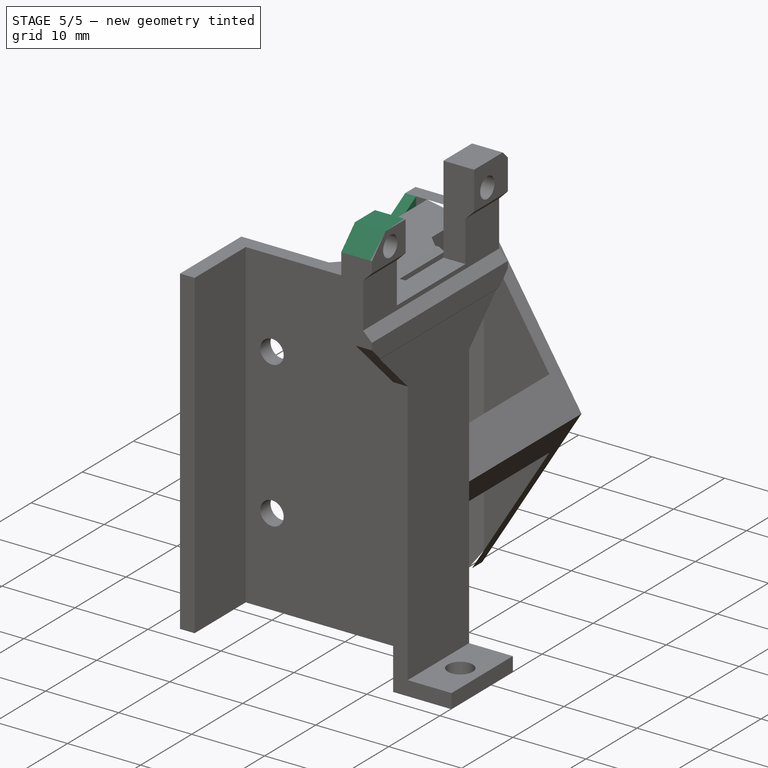
[diagram: stage 5 of 5 — iso view after this stage's code; geometry added in this stage tinted green]
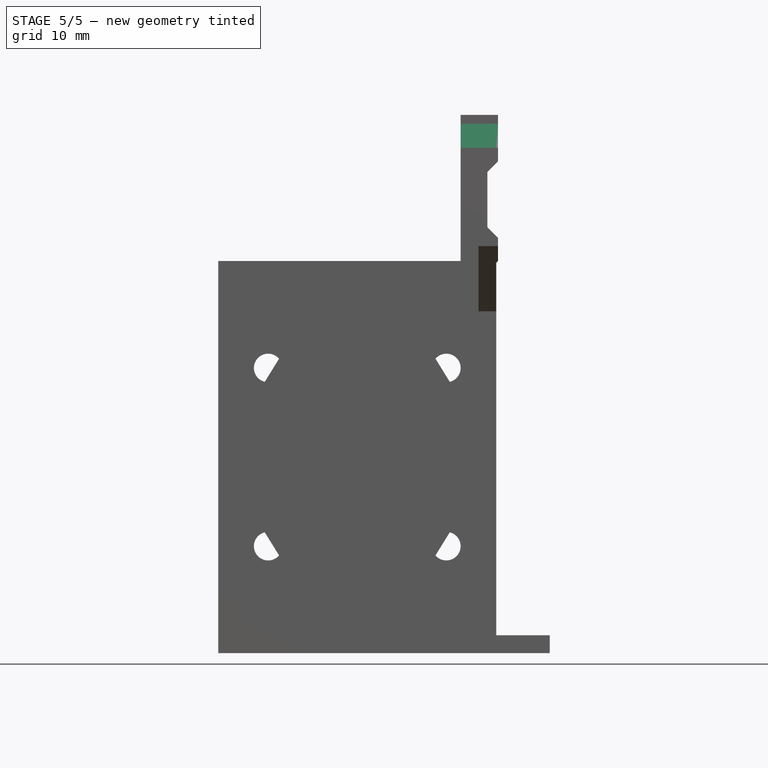
[diagram: stage 5 of 5 — front view after this stage's code; geometry added in this stage tinted green]
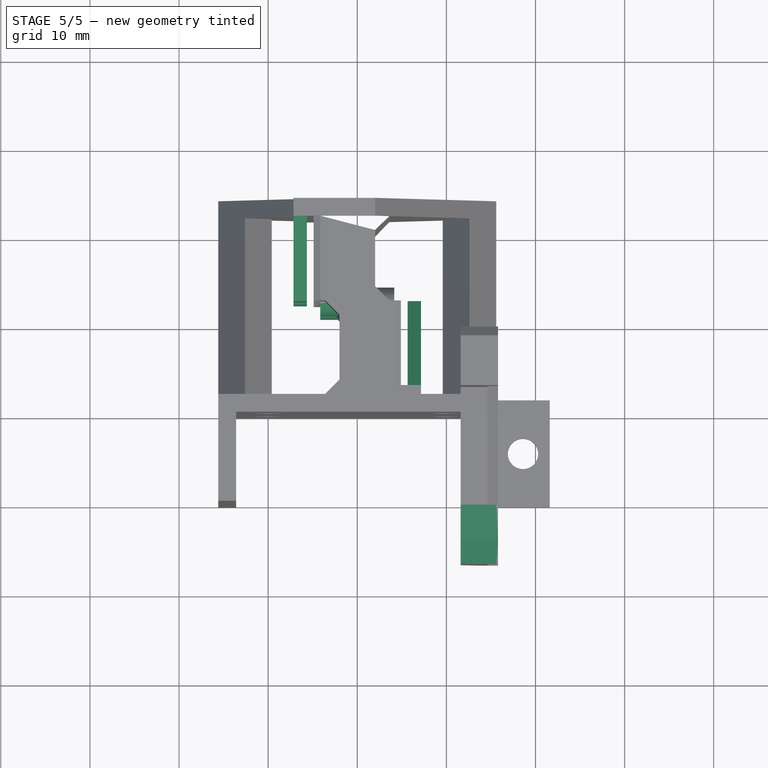
[diagram: stage 5 of 5 — top view after this stage's code; geometry added in this stage tinted green]
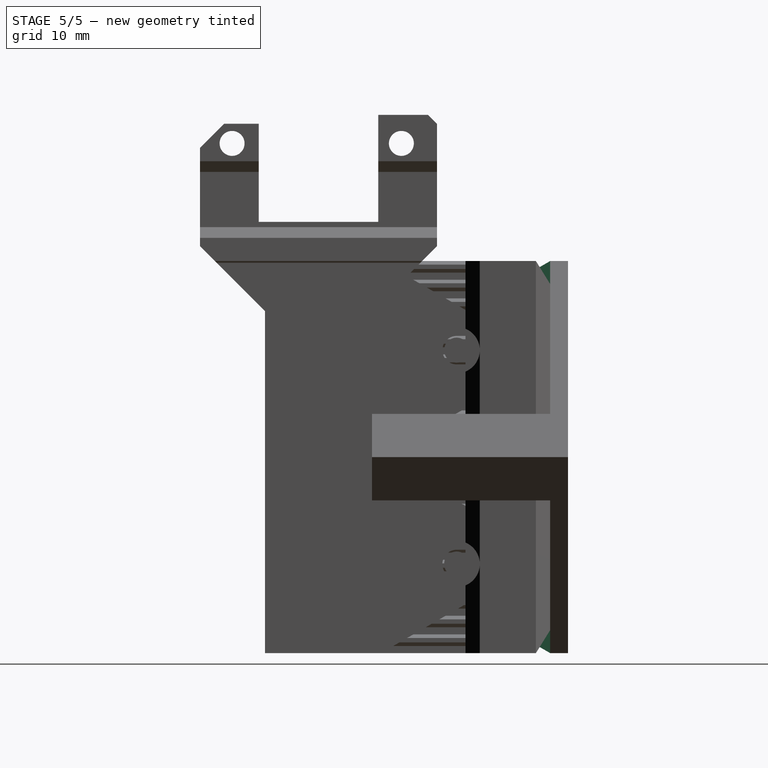
[diagram: stage 5 of 5 — right view after this stage's code; geometry added in this stage tinted green]
FEATURE [Sketcher::SketchObject] Sketch028  label="Sketch Upper Plate"
  ExternalGeometry = -> [Pocket007]
  MapMode = 5
  Placement = pos=(-7.15,0,0) rot=(0.57735,-0.57735,-0.57735;2.0944rad)
  Support = -> [Pocket007]
  expr: Constraints[24] = Screws.m3D
  sketch-geometry (12):
    g0: LineSegment StartX=-12.5 StartY=35.6 StartZ=0 EndX=-12.5 EndY=44 EndZ=0
    g1: LineSegment StartX=-12.5 StartY=44 StartZ=0 EndX=-22 EndY=44 EndZ=0
    g2: LineSegment StartX=-22 StartY=44 StartZ=0 EndX=-22 EndY=-7.1e-15 EndZ=0
    g3: LineSegment StartX=-22 StartY=-7.1e-15 StartZ=0 EndX=-12.5 EndY=0 EndZ=0
    g4: LineSegment StartX=-12.5 StartY=0 StartZ=0 EndX=-12.5 EndY=8.4 EndZ=0
    g5: LineSegment StartX=-12.5 StartY=32.4 StartZ=0 EndX=-12.5 EndY=11.6 EndZ=0
    g6: LineSegment StartX=-12.5 StartY=35.6 StartZ=0 EndX=-13.5 EndY=35.6 EndZ=0
    g7: LineSegment StartX=-12.5 StartY=32.4 StartZ=0 EndX=-13.5 EndY=32.4 EndZ=0
    g8: ArcOfCircle CenterX=-13.5 CenterY=34 CenterZ=0 NormalX=0 NormalY=0 NormalZ=1 AngleXU=0 Radius=1.6 StartAngle=1.5708 EndAngle=4.71239
    g9: LineSegment StartX=-12.5 StartY=11.6 StartZ=0 EndX=-13.5 EndY=11.6 EndZ=0
    g10: LineSegment StartX=-12.5 StartY=8.4 StartZ=0 EndX=-13.5 EndY=8.4 EndZ=0
    g11: ArcOfCircle CenterX=-13.5 CenterY=10 CenterZ=0 NormalX=0 NormalY=0 NormalZ=1 AngleXU=0 Radius=1.6 StartAngle=1.5708 EndAngle=4.71239
  constraints (35):
    c: Coincident(g0,g-4)
    c: Vertical(g0)
    c: Coincident(g0,g1)
    c: Coincident(g1,g-4)
    c: Coincident(g1,g2)
    c: Coincident(g2,g-3)
    c: Coincident(g2,g3)
    c: PointOnObject(g3,g-1)
    c: Coincident(g3,g4)
    c: Vertical(g4)
    c: Vertical(g5)
    c: Vertical(g0,g5)
    c: Vertical(g5,g4)
    c: Equal(g0,g4)
    c: Coincident(g6,g0)
    c: Horizontal(g6)
    c: Coincident(g7,g5)
    c: Horizontal(g7)
    c: Coincident(g8,g6)
    c: Coincident(g8,g7)
    c: DistanceX(g8,g0) = 1
    c: DistanceY(g8,g0) = 10
    c: Vertical(g6,g8)
    c: Vertical(g8,g7)
    c: Diameter(g8) = 3.2
    c: Coincident(g9,g5)
    c: Horizontal(g9)
    c: Coincident(g10,g4)
    c: Horizontal(g10)
    c: Coincident(g11,g9)
    c: Coincident(g11,g10)
    c: Vertical(g10,g11)
    c: Vertical(g11,g9)
    c: Vertical(g9,g8)
    c: Equal(g8,g11)
FEATURE [PartDesign::Pad] Pad019  label="Upper Plate"
  BaseFeature = -> Pocket007
  Length = 1.5
  Length2 = 100
  Profile = -> Sketch028
  Reversed = true
  Type = 0
FEATURE [Sketcher::SketchObject] Sketch029  label="Sketch Upper Hole Pads"
  ExternalGeometry = -> [Pad019]
  MapMode = 5
  Placement = pos=(-4.15,0,0) rot=(0.57735,-0.57735,-0.57735;2.0944rad)
  Support = -> [Pad019]
  sketch-geometry (2):
    g0: Circle CenterX=-13.5 CenterY=10 CenterZ=0 NormalX=0 NormalY=0 NormalZ=1 AngleXU=0 Radius=2.6
    g1: Circle CenterX=-13.5 CenterY=34 CenterZ=0 NormalX=0 NormalY=0 NormalZ=1 AngleXU=0 Radius=2.6
  constraints (4):
    c: Equal(g0,g1)
    c: Diameter(g1) = 5.2
    c: Coincident(g0,g-3)
    c: Coincident(g1,g-4)
FEATURE [PartDesign::Pad] Pad020  label="Upper Hole Pads"
  BaseFeature = -> Pad019
  Length = 3
  Length2 = 100
  Profile = -> Sketch029
  Reversed = true
  Type = 0
FEATURE [Sketcher::SketchObject] Sketch030  label="Sketch Upper Holes"
  ExternalGeometry = -> [Pad020]
  MapMode = 5
  Placement = pos=(-7.15,0,0) rot=(0.57735,-0.57735,-0.57735;2.0944rad)
  Support = -> [Pad020]
  expr: Constraints[1] = Screws.m3d
  sketch-geometry (2):
    g0: Circle CenterX=-13.5 CenterY=34 CenterZ=0 NormalX=0 NormalY=0 NormalZ=1 AngleXU=0 Radius=1.4
    g1: Circle CenterX=-13.5 CenterY=10 CenterZ=0 NormalX=0 NormalY=0 NormalZ=1 AngleXU=0 Radius=1.4
  constraints (4):
    c: Equal(g1,g0)
    c: Diameter(g0) = 2.8
    c: Coincident(g0,g-4)
    c: Coincident(g1,g-3)
FEATURE [PartDesign::Pocket] Pocket008  label="Upper Holes"
  BaseFeature = -> Pad020
  Length = 7
  Length2 = 100
  Profile = -> Sketch030
  Type = 0
FEATURE [Sketcher::SketchObject] Sketch031  label="Sketch Top Mount Hole"
  ExternalGeometry = -> [Pocket008]
  MapMode = 5
  Placement = pos=(7e-16,24,-5.5e-15) rot=(0,0.707107,0.707107;3.14159rad)
  Support = -> [Pocket008]
  expr: Constraints[0] = Screws.m3td
  sketch-geometry (2):
    g0: Circle CenterX=-12.6 CenterY=22 CenterZ=0 NormalX=0 NormalY=0 NormalZ=1 AngleXU=0 Radius=1.4
    g1: LineSegment [constr] StartX=-13.7908 StartY=22.7362 StartZ=0 EndX=-14.7705 EndY=23.3418 EndZ=0
  constraints (8):
    c: Diameter(g0) = 2.8
    c: PointOnObject(g1,g0)
    c: PointOnObject(g0,g1)
    c: Distance(g1) = 1.15178
    c: Horizontal(g0,g-3)
    c: PointOnObject(g1,g-3)
    c: Perpendicular(g-3,g1)
    c: Distance(g-3,g0) = 3
FEATURE [PartDesign::Pocket] Pocket009  label="Top Mount Hole"
  BaseFeature = -> Pocket008
  Length = 11
  Length2 = 100
  Profile = -> Sketch031
  Type = 0
  expr: Length = Screws.m3tl - 1mm
FEATURE [Sketcher::SketchObject] Sketch032  label="Sketch Endstop Lever Clearance Cut"
  ExternalGeometry = -> [Pocket009]
  MapMode = 5
  Placement = pos=(15.8,0,0) rot=(0.57735,0.57735,0.57735;2.0944rad)
  Support = -> [Pocket009]
  sketch-geometry (7):
    g0: LineSegment StartX=-17.3 StartY=56.7113 StartZ=0 EndX=-14.6113 EndY=59.4 EndZ=0
    g1: LineSegment [constr] StartX=-13.7 StartY=58.6 StartZ=0 EndX=-13.7 EndY=59.4 EndZ=0
    g2: LineSegment [constr] StartX=-15.2556 StartY=58.7556 StartZ=0 EndX=-14.6899 EndY=58.1899 EndZ=0
    g3: LineSegment StartX=-17.3 StartY=56.7113 StartZ=0 EndX=-17.3 EndY=60.4 EndZ=0
    g4: LineSegment StartX=-17.3 StartY=60.4 StartZ=0 EndX=-10.7 EndY=60.4 EndZ=0
    g5: LineSegment StartX=-10.7 StartY=60.4 StartZ=0 EndX=-10.7 EndY=59.4 EndZ=0
    g6: LineSegment StartX=-10.7 StartY=59.4 StartZ=0 EndX=-14.6113 EndY=59.4 EndZ=0
  constraints (22):
    c: PointOnObject(g1,g-3)
    c: Vertical(g1)
    c: Vertical(g1,g-3)
    c: Distance(g1) = 0.8
    c: PointOnObject(g2,g0)
    c: PointOnObject(g2,g-3)
    c: Perpendicular(g2,g0)
    c: PointOnObject(g-3,g2)
    c: Equal(g2,g1)
    c: PointOnObject(g0,g-5)
    c: Coincident(g0,g3)
    c: Vertical(g3)
    c: Coincident(g3,g4)
    c: Coincident(g4,g-4)
    c: Horizontal(g4)
    c: Coincident(g4,g5)
    c: Coincident(g5,g6)
    c: Coincident(g6,g0)
    c: Horizontal(g6)
    c: Vertical(g5)
    c: PointOnObject(g1,g6)
    c: Angle(g0,g3) = 0.785398
FEATURE [PartDesign::Pocket] Pocket010  label="Endstop Lever Clearance Cut"
  BaseFeature = -> Pocket009
  Length = 5
  Length2 = 100
  Profile = -> Sketch032
  Type = 1
FEATURE [Sketcher::SketchObject] Sketch033  label="Sketch Lower Cutout"
  ExternalGeometry = -> [Pocket010]
  MapMode = 5
  Placement = pos=(7.15,0,0) rot=(0.57735,0.57735,0.57735;2.0944rad)
  Support = -> [Pocket010]
  sketch-geometry (9):
    g0: LineSegment StartX=3 StartY=44 StartZ=0 EndX=12.5 EndY=38.5152 EndZ=0
    g1: LineSegment StartX=12.5 StartY=38.5152 StartZ=0 EndX=12.5 EndY=44 EndZ=0
    g2: LineSegment StartX=12.5 StartY=44 StartZ=0 EndX=3 EndY=44 EndZ=0
    g3: LineSegment StartX=3 StartY=-2e-16 StartZ=0 EndX=12.5 EndY=0 EndZ=0
    g4: LineSegment StartX=12.5 StartY=0 StartZ=0 EndX=12.5 EndY=5.48483 EndZ=0
    g5: LineSegment StartX=12.5 StartY=5.48483 StartZ=0 EndX=3 EndY=0 EndZ=0
    g6: LineSegment StartX=12.5 StartY=16.5152 StartZ=0 EndX=3 EndY=22 EndZ=0
    g7: LineSegment StartX=3 StartY=22 StartZ=0 EndX=12.5 EndY=27.4848 EndZ=0
    g8: LineSegment StartX=12.5 StartY=27.4848 StartZ=0 EndX=12.5 EndY=16.5152 EndZ=0
  constraints (23):
    c: Coincident(g-3,g0)
    c: Coincident(g0,g1)
    c: Coincident(g1,g-3)
    c: Vertical(g1)
    c: Coincident(g1,g2)
    c: Coincident(g2,g0)
    c: Coincident(g-4,g3)
    c: Coincident(g3,g-4)
    c: Coincident(g3,g4)
    c: Vertical(g4)
    c: Coincident(g4,g5)
    c: Coincident(g5,g3)
    c: Coincident(g6,g7)
    c: Coincident(g7,g8)
    c: Coincident(g8,g6)
    c: Vertical(g8)
    c: Vertical(g6,g3)
    c: Vertical(g6,g3)
    c: Equal(g1,g4)
    c: Angle(g5,g4) = 1.0472
    c: Equal(g7,g6)
    c: Equal(g6,g5)
    c: PointOnObject(g6,g-5)
FEATURE [PartDesign::Pocket] Pocket011  label="Lower Cutout"
  BaseFeature = -> Pocket010
  Length = 2
  Length2 = 100
  Profile = -> Sketch033
  Type = 0
FEATURE [Sketcher::SketchObject] Sketch034  label="Sketch Upper Cutout"
  ExternalGeometry = -> [Pocket011]
  MapMode = 5
  Placement = pos=(-7.15,0,0) rot=(0.57735,-0.57735,-0.57735;2.0944rad)
  Support = -> [Pocket011]
  sketch-geometry (9):
    g0: LineSegment StartX=-22 StartY=44 StartZ=0 EndX=-12.5 EndY=38.5152 EndZ=0
    g1: LineSegment StartX=-12.5 StartY=38.5152 StartZ=0 EndX=-12.5 EndY=44 EndZ=0
    g2: LineSegment StartX=-12.5 StartY=44 StartZ=0 EndX=-22 EndY=44 EndZ=0
    g3: LineSegment StartX=-22 StartY=-7.1e-15 StartZ=0 EndX=-12.5 EndY=0 EndZ=0
    g4: LineSegment StartX=-12.5 StartY=0 StartZ=0 EndX=-12.5 EndY=5.48483 EndZ=0
    g5: LineSegment StartX=-12.5 StartY=5.48483 StartZ=0 EndX=-22 EndY=-7.1e-15 EndZ=0
    g6: LineSegment StartX=-12.5 StartY=16.5152 StartZ=0 EndX=-22 EndY=22 EndZ=0
    g7: LineSegment StartX=-22 StartY=22 StartZ=0 EndX=-12.5 EndY=27.4848 EndZ=0
    g8: LineSegment StartX=-12.5 StartY=27.4848 StartZ=0 EndX=-12.5 EndY=16.5152 EndZ=0
  constraints (22):
    c: Coincident(g-3,g0)
    c: Coincident(g0,g1)
    c: Coincident(g1,g-3)
    c: Vertical(g1)
    c: Coincident(g1,g2)
    c: Coincident(g2,g0)
    c: Coincident(g-4,g3)
    c: Coincident(g3,g-4)
    c: Coincident(g3,g4)
    c: Vertical(g4)
    c: Coincident(g4,g5)
    c: Coincident(g5,g3)
    c: Coincident(g6,g7)
    c: Coincident(g7,g8)
    c: Coincident(g8,g6)
    c: Vertical(g8)
    c: Vertical(g3,g6)
    c: Equal(g5,g6)
    c: Equal(g6,g7)
    c: Equal(g7,g0)
    c: Coincident(g6,g-5)
    c: Angle(g5,g4) = 1.0472
FEATURE [PartDesign::Pocket] Pocket012  label="Upper Cutout"
  BaseFeature = -> Pocket011
  Length = 2
  Length2 = 100
  Profile = -> Sketch034
  Type = 0
FEATURE [PartDesign::Body] Body001  label="Rail Carrier"
  Group = -> [Sketch,Pad,Sketch002,Pocket,Sketch008,Pad007,Sketch009,Pocket001,Sketch011,Pad008,Pad011,Sketch013,Pad010,Sketch014,Pocket003,Sketch016,Sketch017,Pocket004,Chamfer,Chamfer001,Chamfer002,Sketch018,Pad012,Sketch019,Pocket005,LinearPattern,Sketch020,Pad013,Sketch021,Pocket006,LinearPattern001,Sketch022,Pad014,Mirrored,Sketch023,Pad015,Sketch024,Pad016,Chamfer003,Sketch025,Pad017,Sketch026,Pad018,+16 more]
  Origin = -> Origin001
  Tip = -> Pocket012
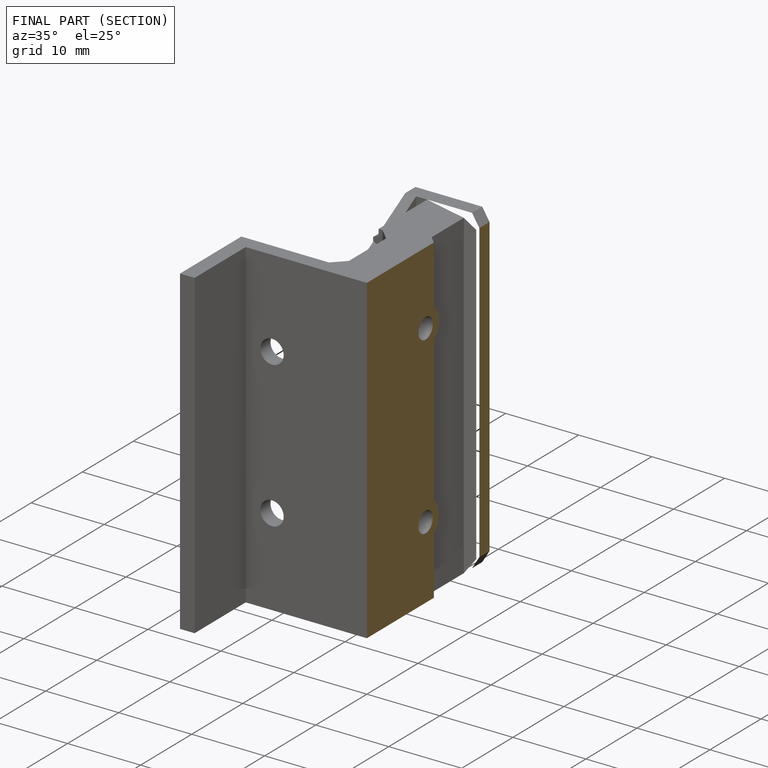
[diagram: finished part — half-section view (interior)]
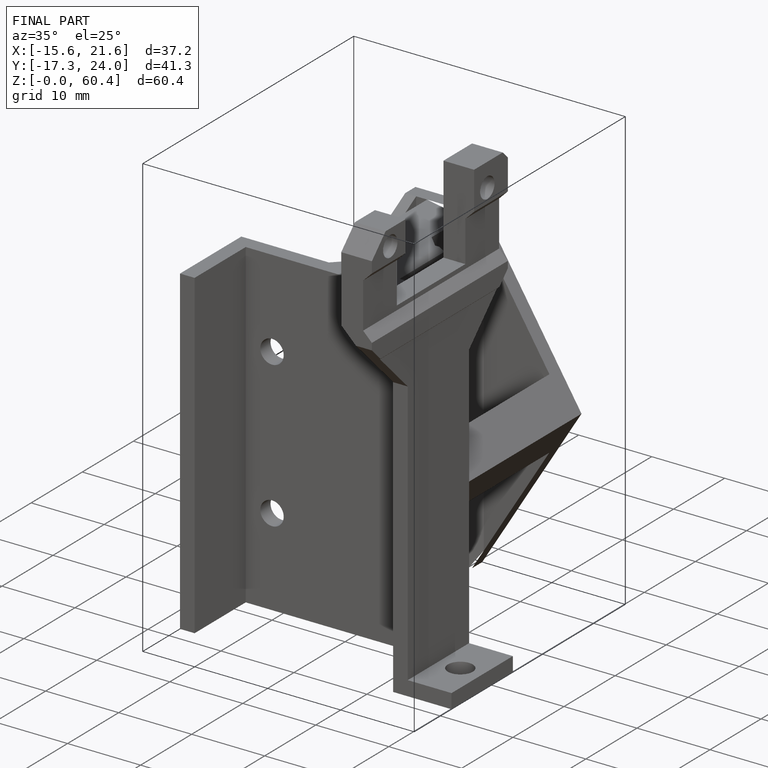
[diagram: finished part — iso view with bounding-box wireframe]
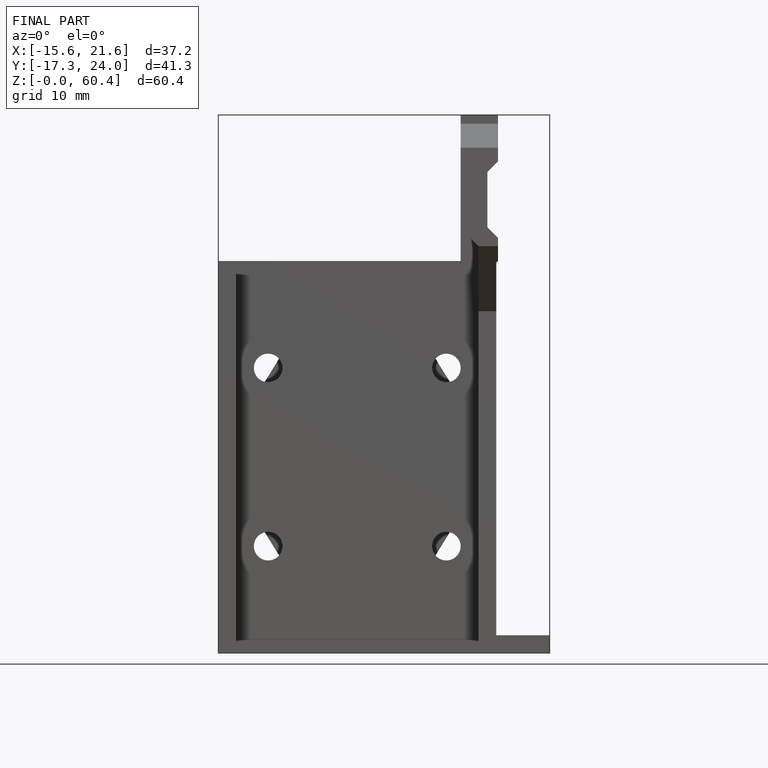
[diagram: finished part — front view with bounding-box wireframe]
